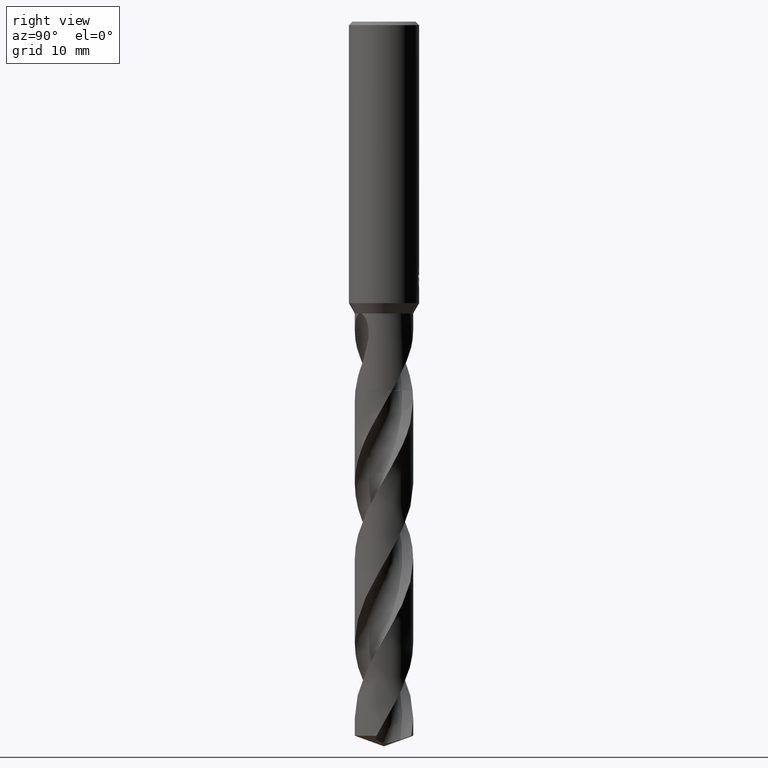
[diagram: clean part render]
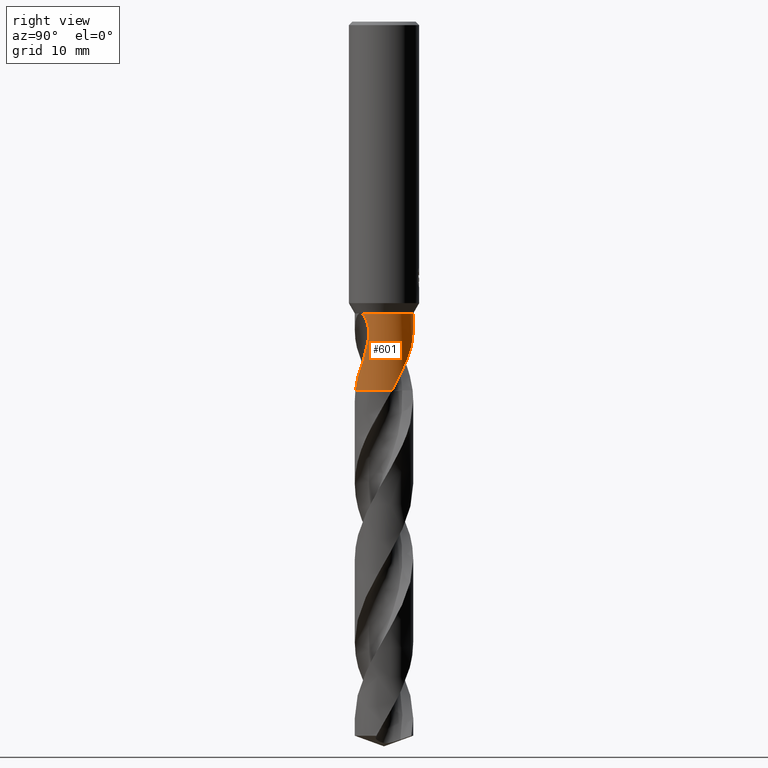
[diagram: same view with one face highlighted and labeled with its STEP entity id]
A machine part, right view. The second image highlights one B-rep face of the part: STEP entity #601.
In plain terms, the highlighted cylindrical surface (edge-blend (fillet) strip) has radius 4.15 mm, axis along (-0, -0, 1).
Its self-contained STEP definition (entity closure, byte-faithful):
#403=EDGE_CURVE('',#769,#419,#982,.T.);
#419=VERTEX_POINT('',#1000);
#421=EDGE_CURVE('',#591,#419,#1002,.T.);
#463=EDGE_CURVE('',#815,#759,#1051,.T.);
#473=VERTEX_POINT('',#1061);
#515=VERTEX_POINT('',#1107);
#557=EDGE_CURVE('',#515,#815,#1154,.T.);
#581=EDGE_CURVE('',#759,#769,#1178,.T.);
#591=VERTEX_POINT('',#1189);
#601=ADVANCED_FACE('',(#1199),#1200,.T.);
#687=EDGE_CURVE('',#829,#473,#1293,.T.);
#719=EDGE_CURVE('',#515,#473,#1329,.T.);
#759=VERTEX_POINT('',#1373);
#769=VERTEX_POINT('',#1383);
#789=EDGE_CURVE('',#591,#829,#1405,.T.);
#815=VERTEX_POINT('',#1435);
#829=VERTEX_POINT('',#1449);
#982=B_SPLINE_CURVE_WITH_KNOTS('',3,(#2084,#2085,#2086,#2087,#2088,#2089,#2090,#2091,#2092,#2093),.UNSPECIFIED.,.F.,.F.,(4,2,2,2,4),(0.0,1.15878584901898,1.60341857253506,2.37973649732656,4.65700234659922),.UNSPECIFIED.);
#1000=CARTESIAN_POINT('',(0.81154696000168,-4.06987610766127,-52.4));
#1002=CIRCLE('',#2517,4.15);
#1051=B_SPLINE_CURVE_WITH_KNOTS('',3,(#2738,#2739,#2740,#2741,#2742,#2743,#2744,#2745,#2746,#2747,#2748,#2749),.UNSPECIFIED.,.F.,.F.,(4,2,2,2,2,4),(0.0,0.393521227080139,0.909762333545459,1.67811237082579,2.75520816968707,3.80387425481552),.UNSPECIFIED.);
#1061=CARTESIAN_POINT('',(-1.23326524844613E-012,4.15,-43.8684424714781));
#1107=CARTESIAN_POINT('',(-5.0311459487014E-016,4.15,-41.4722431864335));
#1154=CIRCLE('',#4759,4.15);
#1178=B_SPLINE_CURVE_WITH_KNOTS('',3,(#4830,#4831,#4832,#4833),.UNSPECIFIED.,.F.,.F.,(4,4),(0.0,2.38508758354659),.UNSPECIFIED.);
#1189=CARTESIAN_POINT('',(3.98698430677133,1.15171877537841,-52.4));
#1199=FACE_OUTER_BOUND('',#5195,.T.);
#1200=CYLINDRICAL_SURFACE('',#5196,4.15);
#1293=B_SPLINE_CURVE_WITH_KNOTS('',3,(#6891,#6892,#6893,#6894,#6895,#6896,#6897,#6898,#6899,#6900,#6901,#6902,#6903,#6904,#6905,#6906,#6907,#6908),.UNSPECIFIED.,.F.,.F.,(4,2,2,2,2,2,2,2,4),(0.0,2.03326758379157,3.14347908007315,4.14905131362899,5.31728427381058,6.7205993800287,7.67330412551721,8.09556133462226,8.45570941259964),.UNSPECIFIED.);
#1329=LINE('',#8420,#8421);
#1373=CARTESIAN_POINT('',(3.37661497775654,-2.41266891470633,-46.0073420573001));
#1383=CARTESIAN_POINT('',(2.88457097255725,-2.98358011527764,-48.2798));
#1405=B_SPLINE_CURVE_WITH_KNOTS('',3,(#9404,#9405,#9406,#9407,#9408,#9409,#9410,#9411,#9412,#9413,#9414,#9415),.UNSPECIFIED.,.F.,.F.,(4,2,2,2,2,4),(0.0,1.20011307639738,2.1413272339217,3.46621362406547,12.0209087772479,31.8136560464672),.UNSPECIFIED.);
#1435=CARTESIAN_POINT('',(2.61944397880986,-3.21885278350483,-41.4722431864335));
#1449=CARTESIAN_POINT('',(2.64444167893907,3.19834773073378,-48.2798));
#2084=CARTESIAN_POINT('',(2.88457097255725,-2.98358011527764,-48.2798));
#2085=CARTESIAN_POINT('',(2.75274738364002,-3.1110291809628,-48.6197670143207));
#2086=CARTESIAN_POINT('',(2.61320747605057,-3.22998336359917,-48.9459084531749));
#2087=CARTESIAN_POINT('',(2.39241249652139,-3.39184697340769,-49.4123666224218));
#2088=CARTESIAN_POINT('',(2.32982568089045,-3.43514556059151,-49.540922383358));
#2089=CARTESIAN_POINT('',(2.15443157291028,-3.54945690095096,-49.8950329956836));
#2090=CARTESIAN_POINT('',(2.04179915921985,-3.61540181719675,-50.1173569617713));
#2091=CARTESIAN_POINT('',(1.57980404464323,-3.85719372706705,-51.0223744274786));
#2092=CARTESIAN_POINT('',(1.20072909594199,-3.99227188312118,-51.713183585906));
#2093=CARTESIAN_POINT('',(0.811546960001717,-4.06987610766127,-52.4));
#2517=AXIS2_PLACEMENT_3D('',#9990,#9991,#9992);
#2738=CARTESIAN_POINT('',(2.61944397880986,-3.21885278350483,-41.4722431864335));
#2739=CARTESIAN_POINT('',(2.71814561673439,-3.13853118181959,-41.5040704963807));
#2740=CARTESIAN_POINT('',(2.80609385156726,-3.05943981220061,-41.5596837560606));
#2741=CARTESIAN_POINT('',(2.98692113836522,-2.88464365442809,-41.7293698690064));
#2742=CARTESIAN_POINT('',(3.07069257959071,-2.79364208312335,-41.8541435667395));
#2743=CARTESIAN_POINT('',(3.24205546645391,-2.59540762264652,-42.1941475599753));
#2744=CARTESIAN_POINT('',(3.32309713499428,-2.48809591046378,-42.4471106636784));
#2745=CARTESIAN_POINT('',(3.46954503968898,-2.28178919264032,-43.145175146952));
#2746=CARTESIAN_POINT('',(3.51873467288002,-2.20024841585317,-43.6391328496406));
#2747=CARTESIAN_POINT('',(3.52844767750107,-2.18463709929342,-44.7291167994089));
#2748=CARTESIAN_POINT('',(3.49439603385498,-2.24783018540792,-45.3374327453989));
#2749=CARTESIAN_POINT('',(3.37661497775654,-2.41266891470634,-46.0073420573001));
#4759=AXIS2_PLACEMENT_3D('',#10153,#10154,#10155);
#4830=CARTESIAN_POINT('',(3.37661497780915,-2.4126689146327,-46.007342057329));
#4831=CARTESIAN_POINT('',(3.24282239851008,-2.59991633363869,-46.7683344159846));
#4832=CARTESIAN_POINT('',(3.08156657945763,-2.7931217439819,-47.5338554087005));
#4833=CARTESIAN_POINT('',(2.88457097255725,-2.98358011527764,-48.2798));
#5195=EDGE_LOOP('',(#10171,#10172,#10173,#10174,#10175,#10176,#10177,#10178));
#5196=AXIS2_PLACEMENT_3D('',#10179,#10180,#10181);
#6891=CARTESIAN_POINT('',(2.64444167893907,3.19834773073378,-48.2798));
#6892=CARTESIAN_POINT('',(2.37069263388147,3.42468753030085,-47.7025784108858));
#6893=CARTESIAN_POINT('',(2.055943266371,3.62588788415665,-47.1644216501173));
#6894=CARTESIAN_POINT('',(1.50711421113444,3.8725011230191,-46.2653939935514));
#6895=CARTESIAN_POINT('',(1.30961975169905,3.94344242554095,-45.9490858642741));
#6896=CARTESIAN_POINT('',(0.927295442727713,4.04946664666862,-45.3367953668256));
#6897=CARTESIAN_POINT('',(0.744172661912362,4.08692475195318,-45.0436669727485));
#6898=CARTESIAN_POINT('',(0.347788991518319,4.14098603113344,-44.4118975065021));
#6899=CARTESIAN_POINT('',(0.131217107125276,4.15367811971849,-44.0683112547877));
#6900=CARTESIAN_POINT('',(-0.349733653231845,4.14356144907311,-43.3332668180174));
#6901=CARTESIAN_POINT('',(-0.634888878283865,4.11227091069935,-42.9150184827953));
#6902=CARTESIAN_POINT('',(-1.12944671698398,3.99861926396886,-42.2947468363555));
#6903=CARTESIAN_POINT('',(-1.35398349194747,3.93112575205028,-42.0411589884207));
#6904=CARTESIAN_POINT('',(-1.69265158482457,3.7907921775579,-41.7507051851405));
#6905=CARTESIAN_POINT('',(-1.8024400201325,3.74031235496902,-41.6685582249549));
#6906=CARTESIAN_POINT('',(-2.01182547542569,3.63137197013399,-41.5457146731982));
#6907=CARTESIAN_POINT('',(-2.11146783853084,3.57469053960248,-41.5001580057085));
#6908=CARTESIAN_POINT('',(-2.21231897514118,3.51114578908798,-41.4722431864335));
#8420=CARTESIAN_POINT('',(-5.0311459487014E-016,4.15,-46.9361215932168));
#8421=VECTOR('',#10315,1.0);
#9404=CARTESIAN_POINT('',(3.98698430677134,1.15171877537842,-52.4));
#9405=CARTESIAN_POINT('',(3.93168538858849,1.34315085384221,-52.0531196977206));
#9406=CARTESIAN_POINT('',(3.86252592831279,1.53110798473945,-51.710133015512));
#9407=CARTESIAN_POINT('',(3.71338576593848,1.85968327374544,-51.0962507481593));
#9408=CARTESIAN_POINT('',(3.6435046034555,1.99214759821118,-50.8481130925197));
#9409=CARTESIAN_POINT('',(3.4642996754838,2.29418580002806,-50.234157849699));
#9410=CARTESIAN_POINT('',(3.38861058092984,2.39602682647598,-49.9797334391327));
#9411=CARTESIAN_POINT('',(3.24248515141461,2.59918148766191,-49.4952197360717));
#9412=CARTESIAN_POINT('',(3.13117618516385,2.72475521856078,-49.2209482679003));
#9413=CARTESIAN_POINT('',(2.95828905501065,2.91606590175817,-48.8069504959028));
#9414=CARTESIAN_POINT('',(2.81527091568632,3.05710356603748,-48.5378462228458));
#9415=CARTESIAN_POINT('',(2.64444167893907,3.19834773073378,-48.2798));
#9990=CARTESIAN_POINT('',(0.0,0.0,-52.4));
#9991=DIRECTION('',(0.0,0.0,-1.0));
#9992=DIRECTION('',(0.0,1.0,0.0));
#10153=CARTESIAN_POINT('',(0.0,0.0,-41.4722431864335));
#10154=DIRECTION('',(0.0,0.0,-1.0));
#10155=DIRECTION('',(0.0,1.0,0.0));
#10171=ORIENTED_EDGE('',*,*,#719,.F.);
#10172=ORIENTED_EDGE('',*,*,#557,.T.);
#10173=ORIENTED_EDGE('',*,*,#463,.T.);
#10174=ORIENTED_EDGE('',*,*,#581,.T.);
#10175=ORIENTED_EDGE('',*,*,#403,.T.);
#10176=ORIENTED_EDGE('',*,*,#421,.F.);
#10177=ORIENTED_EDGE('',*,*,#789,.T.);
#10178=ORIENTED_EDGE('',*,*,#687,.T.);
#10179=CARTESIAN_POINT('',(0.0,0.0,-46.9361215932168));
#10180=DIRECTION('',(-0.0,-0.0,1.0));
#10181=DIRECTION('',(0.0,1.0,0.0));
#10315=DIRECTION('',(0.0,0.0,-1.0));